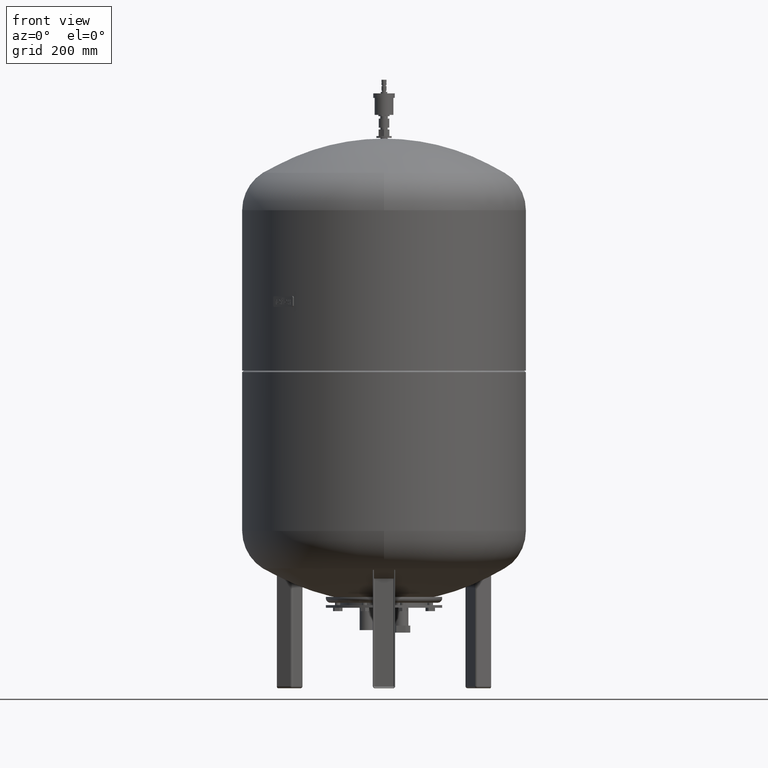
[diagram: clean part render]
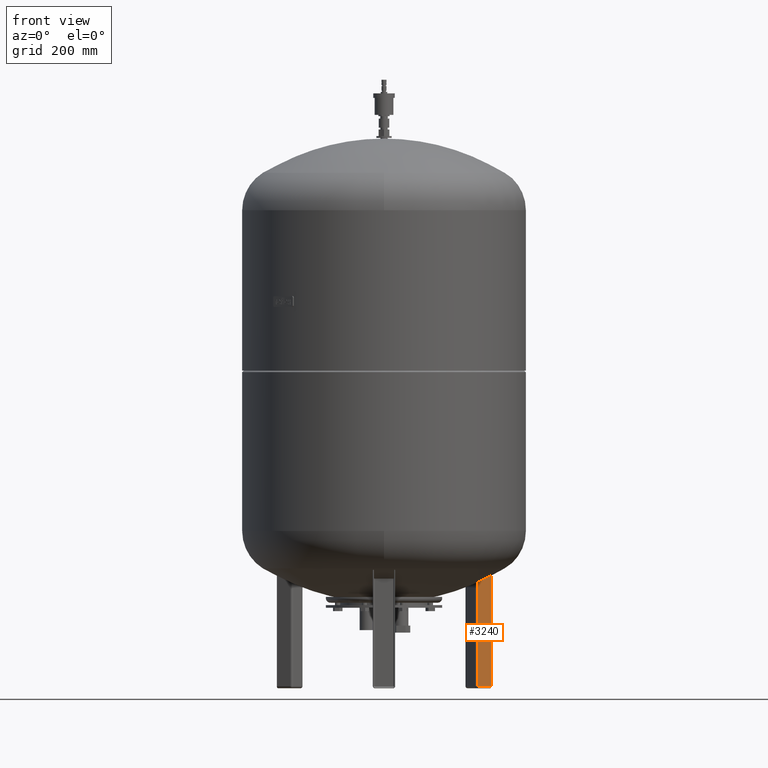
[diagram: same view with one face highlighted and labeled with its STEP entity id]
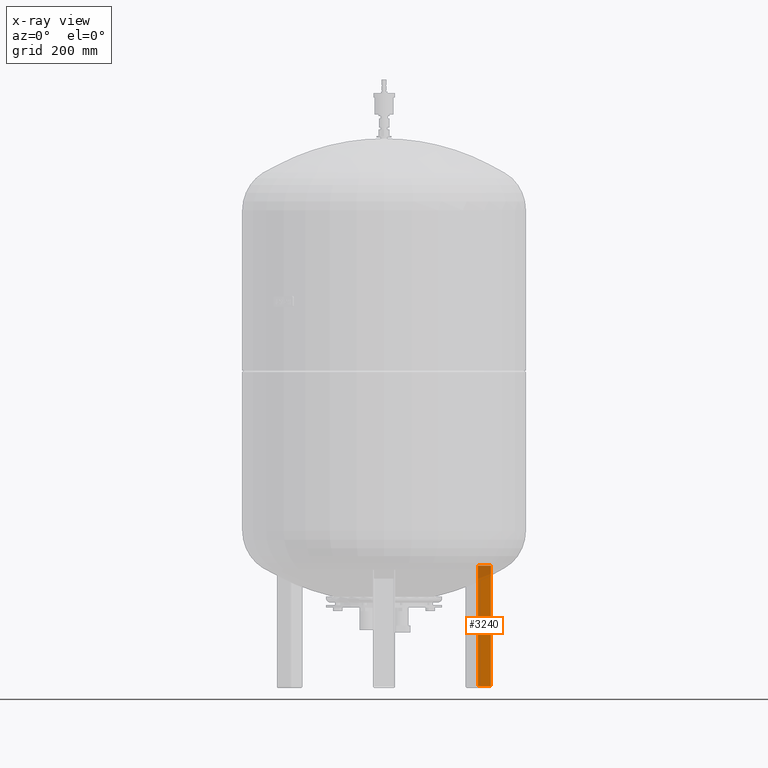
[diagram: x-ray of the same camera — body ghosted, the highlighted face saturated]
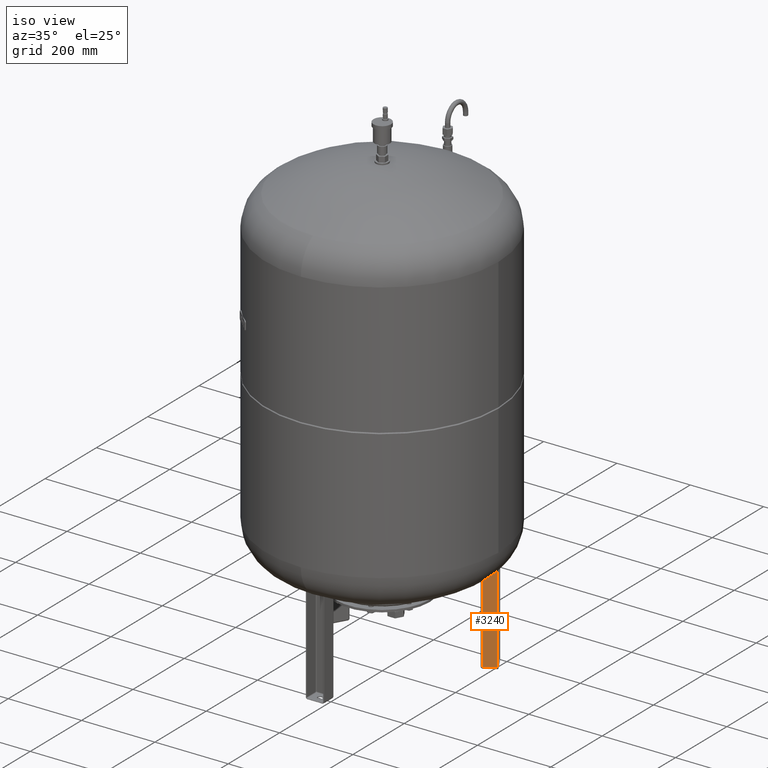
[diagram: same view with one face highlighted and labeled with its STEP entity id]
A machine part, front view. The second image highlights one B-rep face of the part: STEP entity #3240.
The next image is the same camera in x-ray: the body ghosted, the highlighted face saturated — about 9% of this face is hidden behind the body in this view.
A second angle (iso view) of the same face is appended — the face is thin or edge-on in the first view.
In plain terms, the highlighted planar face has unit normal (0.5, -0.866, -0).
Its self-contained STEP definition (entity closure, byte-faithful):
#2412=CARTESIAN_POINT('',(209.520779360959840,92.099364905389024,274.0));
#2413=VERTEX_POINT('',#2412);
#2421=CARTESIAN_POINT('',(238.965643089630760,109.099364905389040,274.0));
#2422=VERTEX_POINT('',#2421);
#2423=CARTESIAN_POINT('',(238.965643089630760,109.099364905389040,274.0));
#2424=DIRECTION('',(-0.866025403784439,-0.500000000000000,0.0));
#2425=VECTOR('',#2424,34.000000000000014);
#2426=LINE('',#2423,#2425);
#2427=EDGE_CURVE('',#2422,#2413,#2426,.T.);
#2732=CARTESIAN_POINT('',(238.965643089630760,109.099364905389020,4.999999999999996));
#2733=VERTEX_POINT('',#2732);
#2734=CARTESIAN_POINT('',(238.965643089630760,109.099364905389020,4.999999999999996));
#2735=DIRECTION('',(0.0,0.0,1.0));
#2736=VECTOR('',#2735,269.0);
#2737=LINE('',#2734,#2736);
#2738=EDGE_CURVE('',#2733,#2422,#2737,.T.);
#3115=CARTESIAN_POINT('',(209.520779360959840,92.099364905389038,4.999999999999996));
#3116=VERTEX_POINT('',#3115);
#3117=CARTESIAN_POINT('',(238.965643089630760,109.099364905389020,4.999999999999996));
#3118=DIRECTION('',(-0.866025403784439,-0.500000000000000,0.0));
#3119=VECTOR('',#3118,34.0);
#3120=LINE('',#3117,#3119);
#3121=EDGE_CURVE('',#2733,#3116,#3120,.T.);
#3218=CARTESIAN_POINT('',(209.520779360959840,92.099364905389038,4.999999999999996));
#3219=DIRECTION('',(0.0,0.0,1.0));
#3220=VECTOR('',#3219,269.0);
#3221=LINE('',#3218,#3220);
#3222=EDGE_CURVE('',#3116,#2413,#3221,.T.);
#3229=CARTESIAN_POINT('',(239.831668493415180,109.599364905389040,-4.592425E-015));
#3230=DIRECTION('',(0.500000000000000,-0.866025403784439,-1.836970E-016));
#3231=DIRECTION('',(0.866025403784439,0.500000000000000,4.078893E-032));
#3232=AXIS2_PLACEMENT_3D('',#3229,#3230,#3231);
#3233=PLANE('',#3232);
#3234=ORIENTED_EDGE('',*,*,#2738,.T.);
#3235=ORIENTED_EDGE('',*,*,#2427,.T.);
#3236=ORIENTED_EDGE('',*,*,#3222,.F.);
#3237=ORIENTED_EDGE('',*,*,#3121,.F.);
#3238=EDGE_LOOP('',(#3234,#3235,#3236,#3237));
#3239=FACE_OUTER_BOUND('',#3238,.T.);
#3240=ADVANCED_FACE('',(#3239),#3233,.T.);